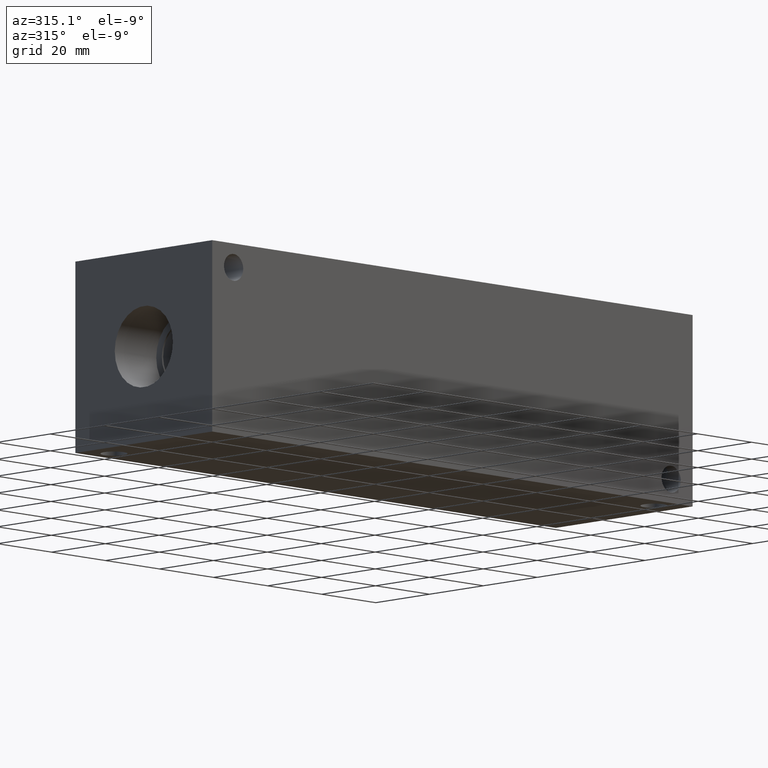
[diagram: clean part render]
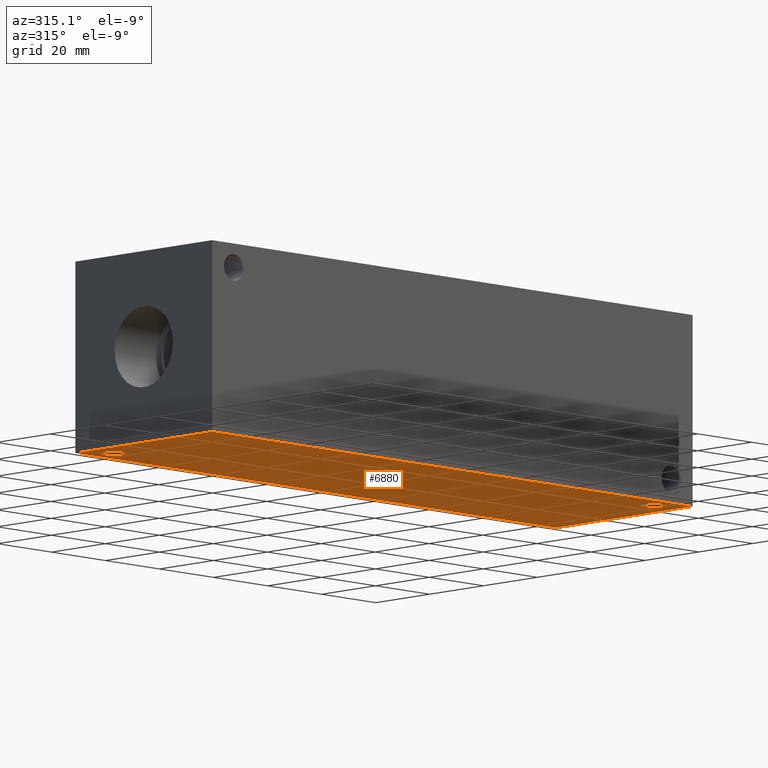
[diagram: same view with one face highlighted and labeled with its STEP entity id]
A machine part, auxiliary view. The second image highlights one B-rep face of the part: STEP entity #6880.
In plain terms, the highlighted planar face has unit normal (0, 0, 1).
Its self-contained STEP definition (entity closure, byte-faithful):
#61=CIRCLE('',#7126,3.5687);
#62=CIRCLE('',#7128,3.5687);
#137=FACE_BOUND('',#1091,.T.);
#138=FACE_BOUND('',#1092,.T.);
#349=PLANE('',#7183);
#697=FACE_OUTER_BOUND('',#1090,.T.);
#1090=EDGE_LOOP('',(#6108,#6109,#6110,#6111));
#1091=EDGE_LOOP('',(#6112));
#1092=EDGE_LOOP('',(#6113));
#1747=LINE('',#11821,#2409);
#1750=LINE('',#11826,#2412);
#1752=LINE('',#11830,#2414);
#1754=LINE('',#11833,#2416);
#2409=VECTOR('',#8408,10.);
#2412=VECTOR('',#8413,10.);
#2414=VECTOR('',#8417,10.);
#2416=VECTOR('',#8421,10.);
#3239=VERTEX_POINT('',#11713);
#3240=VERTEX_POINT('',#11717);
#3275=VERTEX_POINT('',#11819);
#3276=VERTEX_POINT('',#11820);
#3277=VERTEX_POINT('',#11825);
#3278=VERTEX_POINT('',#11829);
#4169=EDGE_CURVE('',#3239,#3239,#61,.T.);
#4171=EDGE_CURVE('',#3240,#3240,#62,.T.);
#4216=EDGE_CURVE('',#3275,#3276,#1747,.T.);
#4219=EDGE_CURVE('',#3277,#3275,#1750,.T.);
#4221=EDGE_CURVE('',#3278,#3277,#1752,.T.);
#4223=EDGE_CURVE('',#3276,#3278,#1754,.T.);
#6108=ORIENTED_EDGE('',*,*,#4223,.F.);
#6109=ORIENTED_EDGE('',*,*,#4216,.F.);
#6110=ORIENTED_EDGE('',*,*,#4219,.F.);
#6111=ORIENTED_EDGE('',*,*,#4221,.F.);
#6112=ORIENTED_EDGE('',*,*,#4169,.T.);
#6113=ORIENTED_EDGE('',*,*,#4171,.T.);
#6880=ADVANCED_FACE('',(#697,#137,#138),#349,.F.);
#7126=AXIS2_PLACEMENT_3D('',#11715,#8286,#8287);
#7128=AXIS2_PLACEMENT_3D('',#11719,#8291,#8292);
#7183=AXIS2_PLACEMENT_3D('',#11835,#8424,#8425);
#8286=DIRECTION('center_axis',(0.,0.,1.));
#8287=DIRECTION('ref_axis',(1.,0.,0.));
#8291=DIRECTION('center_axis',(0.,0.,1.));
#8292=DIRECTION('ref_axis',(1.,0.,0.));
#8408=DIRECTION('',(0.,-1.,0.));
#8413=DIRECTION('',(-1.,0.,0.));
#8417=DIRECTION('',(0.,1.,0.));
#8421=DIRECTION('',(1.,0.,0.));
#8424=DIRECTION('center_axis',(0.,0.,1.));
#8425=DIRECTION('ref_axis',(1.,0.,0.));
#11713=CARTESIAN_POINT('',(4.3561,44.45,0.));
#11715=CARTESIAN_POINT('Origin',(7.9248,44.45,0.));
#11717=CARTESIAN_POINT('',(166.3065,6.35,0.));
#11719=CARTESIAN_POINT('Origin',(169.8752,6.35,0.));
#11819=CARTESIAN_POINT('',(0.,50.8,0.));
#11820=CARTESIAN_POINT('',(0.,0.,0.));
#11821=CARTESIAN_POINT('',(0.,50.8,0.));
#11825=CARTESIAN_POINT('',(177.8,50.8,0.));
#11826=CARTESIAN_POINT('',(177.8,50.8,0.));
#11829=CARTESIAN_POINT('',(177.8,0.,0.));
#11830=CARTESIAN_POINT('',(177.8,0.,0.));
#11833=CARTESIAN_POINT('',(0.,0.,0.));
#11835=CARTESIAN_POINT('Origin',(88.9,25.4,0.));